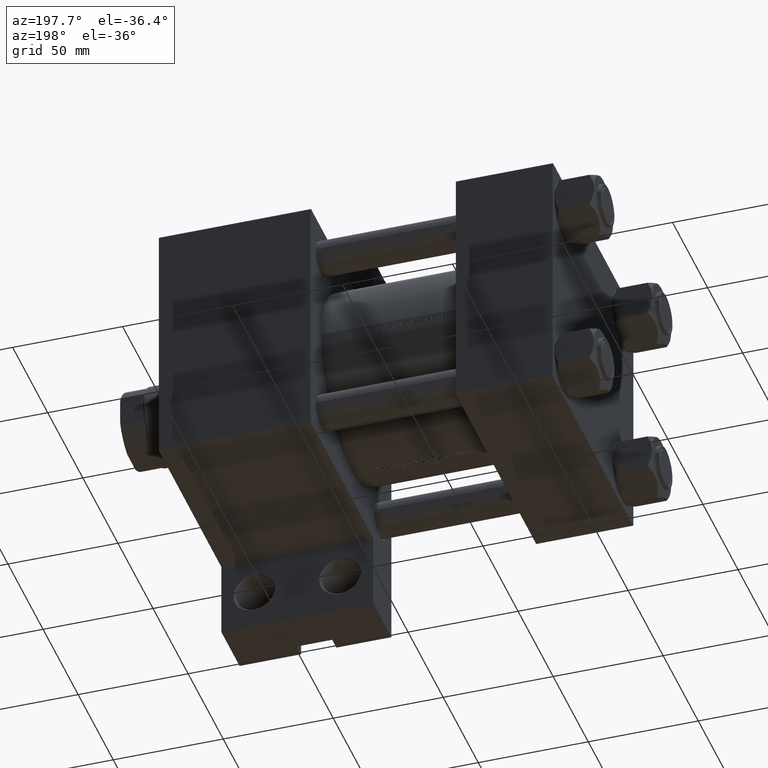
[diagram: clean part render]
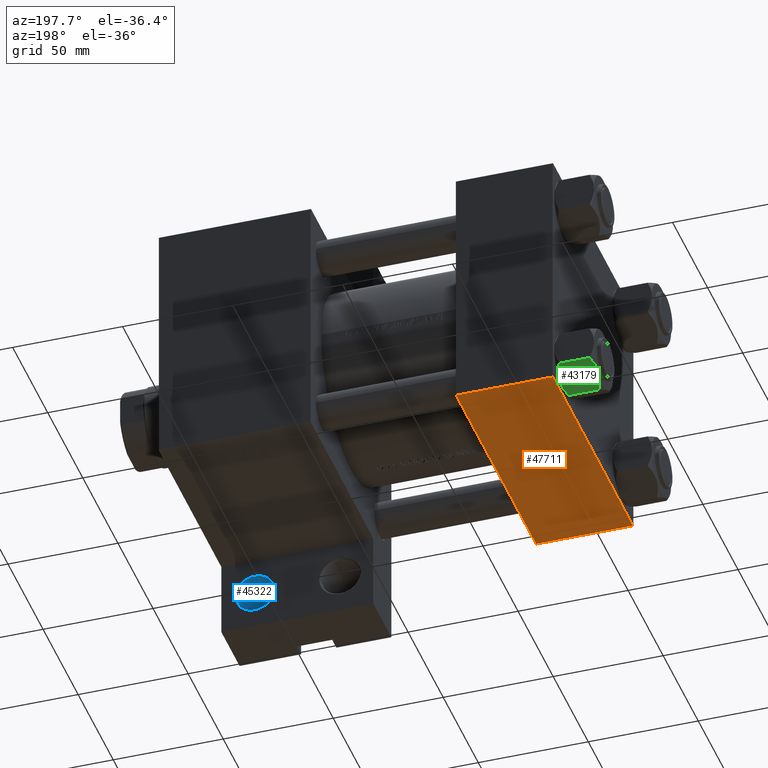
[diagram: same view with three faces highlighted in distinct colors, each labeled with its STEP entity id]
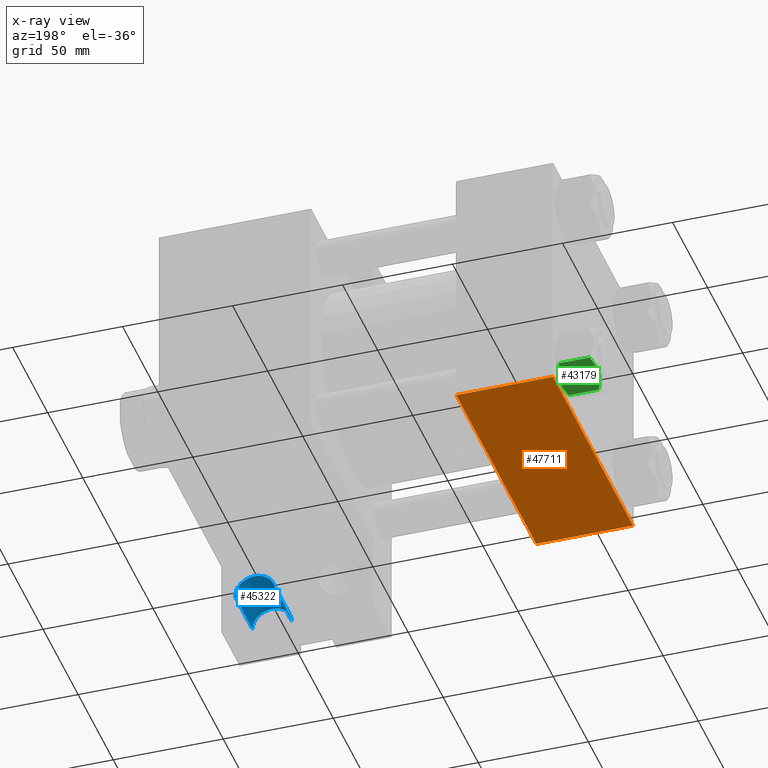
[diagram: x-ray of the same camera — body ghosted, the three highlighted faces saturated]
A machine part, auxiliary view with three faces highlighted in distinct colors.
The next image is the same camera in x-ray (body ghosted, the three faces saturated) — at least one of them is partly hidden behind the body in this view.
Their STEP definitions:

[orange] entity #47711 — the highlighted planar face has unit normal (0, 0, -1).
#3535 = CARTESIAN_POINT ( 'NONE',  ( 44.00000000000000000, 57.49999999999999289, -57.00000000000000711 ) ) ;
#4877 = AXIS2_PLACEMENT_3D ( 'NONE', #8517, #12417, #5109 ) ;
#5109 = DIRECTION ( 'NONE',  ( 0.000000000000000000, -0.000000000000000000, 1.000000000000000000 ) ) ;
#6801 = LINE ( 'NONE', #22101, #33137 ) ;
#8517 = CARTESIAN_POINT ( 'NONE',  ( 44.00000000000000000, 57.49999999999999289, 57.50000000000000711 ) ) ;
#9634 = EDGE_CURVE ( 'NONE', #9775, #47880, #6801, .T. ) ;
#9775 = VERTEX_POINT ( 'NONE', #19394 ) ;
#10602 = LINE ( 'NONE', #3535, #14728 ) ;
#11414 = VERTEX_POINT ( 'NONE', #37736 ) ;
#12215 = EDGE_CURVE ( 'NONE', #47880, #11414, #10602, .T. ) ;
#12369 = DIRECTION ( 'NONE',  ( 0.000000000000000000, 0.000000000000000000, -1.000000000000000000 ) ) ;
#12417 = DIRECTION ( 'NONE',  ( -0.000000000000000000, 1.000000000000000000, 0.000000000000000000 ) ) ;
#13967 = VERTEX_POINT ( 'NONE', #22078 ) ;
#13996 = VECTOR ( 'NONE', #31420, 1000.000000000000000 ) ;
#14728 = VECTOR ( 'NONE', #32746, 1000.000000000000000 ) ;
#16589 = CARTESIAN_POINT ( 'NONE',  ( 44.00000000000000000, 57.49999999999999289, 57.00000000000003553 ) ) ;
#17683 = ORIENTED_EDGE ( 'NONE', *, *, #9634, .T. ) ;
#18225 = DIRECTION ( 'NONE',  ( 0.000000000000000000, 0.000000000000000000, -1.000000000000000000 ) ) ;
#19394 = CARTESIAN_POINT ( 'NONE',  ( 44.00000000000000000, 57.49999999999999289, 57.00000000000003553 ) ) ;
#22078 = CARTESIAN_POINT ( 'NONE',  ( 0.000000000000000000, 57.49999999999999289, 57.00000000000003553 ) ) ;
#22101 = CARTESIAN_POINT ( 'NONE',  ( 44.00000000000000000, 57.49999999999999289, 57.50000000000000711 ) ) ;
#23880 = LINE ( 'NONE', #16589, #13996 ) ;
#26939 = CARTESIAN_POINT ( 'NONE',  ( 0.000000000000000000, 57.49999999999999289, 57.50000000000000711 ) ) ;
#29004 = ORIENTED_EDGE ( 'NONE', *, *, #39378, .F. ) ;
#29418 = ORIENTED_EDGE ( 'NONE', *, *, #38184, .T. ) ;
#31420 = DIRECTION ( 'NONE',  ( 1.000000000000000000, 0.000000000000000000, 0.000000000000000000 ) ) ;
#32746 = DIRECTION ( 'NONE',  ( -1.000000000000000000, 0.000000000000000000, 0.000000000000000000 ) ) ;
#33137 = VECTOR ( 'NONE', #18225, 1000.000000000000000 ) ;
#37736 = CARTESIAN_POINT ( 'NONE',  ( 0.000000000000000000, 57.49999999999999289, -57.00000000000000711 ) ) ;
#38184 = EDGE_CURVE ( 'NONE', #13967, #9775, #23880, .T. ) ;
#39378 = EDGE_CURVE ( 'NONE', #13967, #11414, #44746, .T. ) ;
#40129 = CARTESIAN_POINT ( 'NONE',  ( 44.00000000000000000, 57.49999999999999289, -57.00000000000000711 ) ) ;
#41841 = PLANE ( 'NONE',  #4877 ) ;
#42770 = VECTOR ( 'NONE', #12369, 1000.000000000000000 ) ;
#43377 = EDGE_LOOP ( 'NONE', ( #17683, #46642, #29004, #29418 ) ) ;
#44746 = LINE ( 'NONE', #26939, #42770 ) ;
#45019 = FACE_OUTER_BOUND ( 'NONE', #43377, .T. ) ;
#46642 = ORIENTED_EDGE ( 'NONE', *, *, #12215, .T. ) ;
#47711 = ADVANCED_FACE ( 'NONE', ( #45019 ), #41841, .T. ) ;
#47880 = VERTEX_POINT ( 'NONE', #40129 ) ;

[blue] entity #45322 — the highlighted cylindrical surface (edge-blend (fillet) strip) has radius 8.9995 mm, axis along (0, 1, 0).
#2006 = CARTESIAN_POINT ( 'NONE',  ( 155.0004999999999882, 74.50000000000000000, -82.95442990915330483 ) ) ;
#3670 = DIRECTION ( 'NONE',  ( 0.000000000000000000, 0.000000000000000000, 1.000000000000000000 ) ) ;
#3916 = CIRCLE ( 'NONE', #27191, 8.999499999999994060 ) ;
#8385 = DIRECTION ( 'NONE',  ( -0.000000000000000000, -0.000000000000000000, -1.000000000000000000 ) ) ;
#8392 = VECTOR ( 'NONE', #16850, 1000.000000000000000 ) ;
#9177 = EDGE_CURVE ( 'NONE', #39528, #23928, #17523, .T. ) ;
#9187 = CARTESIAN_POINT ( 'NONE',  ( 155.0004999999999882, 74.50000000000000000, -32.00000000000002132 ) ) ;
#10504 = CARTESIAN_POINT ( 'NONE',  ( 163.9999999999999716, 74.50000000000000000, -32.00000000000002132 ) ) ;
#10884 = CARTESIAN_POINT ( 'NONE',  ( 172.9994999999999834, 74.50000000000000000, -82.95442990915330483 ) ) ;
#11399 = VECTOR ( 'NONE', #43726, 1000.000000000000000 ) ;
#13217 = LINE ( 'NONE', #2006, #8392 ) ;
#14290 = CARTESIAN_POINT ( 'NONE',  ( 172.9994999999999834, 74.50000000000000000, -32.00000000000002132 ) ) ;
#15000 = AXIS2_PLACEMENT_3D ( 'NONE', #40746, #22249, #29791 ) ;
#15693 = DIRECTION ( 'NONE',  ( -1.000000000000000000, 0.000000000000000000, 0.000000000000000000 ) ) ;
#16850 = DIRECTION ( 'NONE',  ( -0.000000000000000000, -0.000000000000000000, 1.000000000000000000 ) ) ;
#17523 = CIRCLE ( 'NONE', #46243, 8.999499999999994060 ) ;
#19077 = VERTEX_POINT ( 'NONE', #26708 ) ;
#22249 = DIRECTION ( 'NONE',  ( -0.000000000000000000, -0.000000000000000000, 1.000000000000000000 ) ) ;
#23928 = VERTEX_POINT ( 'NONE', #14290 ) ;
#24168 = ORIENTED_EDGE ( 'NONE', *, *, #9177, .T. ) ;
#24435 = ORIENTED_EDGE ( 'NONE', *, *, #26852, .F. ) ;
#26708 = CARTESIAN_POINT ( 'NONE',  ( 172.9994999999999834, 74.50000000000000000, -56.99999999999996447 ) ) ;
#26852 = EDGE_CURVE ( 'NONE', #19077, #23928, #28873, .T. ) ;
#27191 = AXIS2_PLACEMENT_3D ( 'NONE', #34413, #8385, #15693 ) ;
#28873 = LINE ( 'NONE', #10884, #11399 ) ;
#29791 = DIRECTION ( 'NONE',  ( 1.000000000000000000, 0.000000000000000000, 0.000000000000000000 ) ) ;
#30749 = FACE_OUTER_BOUND ( 'NONE', #46014, .T. ) ;
#32388 = EDGE_CURVE ( 'NONE', #45571, #39528, #13217, .T. ) ;
#33923 = ORIENTED_EDGE ( 'NONE', *, *, #37822, .T. ) ;
#34413 = CARTESIAN_POINT ( 'NONE',  ( 163.9999999999999716, 74.50000000000000000, -56.99999999999996447 ) ) ;
#36756 = DIRECTION ( 'NONE',  ( 1.000000000000000000, 0.000000000000000000, 0.000000000000000000 ) ) ;
#37822 = EDGE_CURVE ( 'NONE', #19077, #45571, #3916, .T. ) ;
#39528 = VERTEX_POINT ( 'NONE', #9187 ) ;
#40746 = CARTESIAN_POINT ( 'NONE',  ( 163.9999999999999716, 74.50000000000000000, -82.95442990915330483 ) ) ;
#40927 = CARTESIAN_POINT ( 'NONE',  ( 155.0004999999999882, 74.50000000000000000, -56.99999999999996447 ) ) ;
#41221 = CYLINDRICAL_SURFACE ( 'NONE', #15000, 8.999499999999994060 ) ;
#43726 = DIRECTION ( 'NONE',  ( -0.000000000000000000, -0.000000000000000000, 1.000000000000000000 ) ) ;
#45322 = ADVANCED_FACE ( 'NONE', ( #30749 ), #41221, .F. ) ;
#45571 = VERTEX_POINT ( 'NONE', #40927 ) ;
#45673 = ORIENTED_EDGE ( 'NONE', *, *, #32388, .T. ) ;
#46014 = EDGE_LOOP ( 'NONE', ( #33923, #45673, #24168, #24435 ) ) ;
#46243 = AXIS2_PLACEMENT_3D ( 'NONE', #10504, #3670, #36756 ) ;

[green] entity #43179 — the highlighted planar face has unit normal (0, -0.5, 0.866).
#134 = VECTOR ( 'NONE', #44411, 1000.000000000000000 ) ;
#929 = CARTESIAN_POINT ( 'NONE',  ( -7.903528262322672582, 13.36532110482643354, -2.000000000000000000 ) ) ;
#1639 = CARTESIAN_POINT ( 'NONE',  ( -14.31545111198821374, 2.259544954993889299, -17.08577173959730544 ) ) ;
#3705 = EDGE_CURVE ( 'NONE', #39240, #39862, #43528, .T. ) ;
#4265 = CARTESIAN_POINT ( 'NONE',  ( -15.61999999999999567, 8.023367828467702033E-15, -18.00000000000000000 ) ) ;
#4297 = ORIENTED_EDGE ( 'NONE', *, *, #38516, .F. ) ;
#4758 = EDGE_CURVE ( 'NONE', #39862, #42720, #44307, .T. ) ;
#5481 = CARTESIAN_POINT ( 'NONE',  ( -7.809999999999996945, 13.52731680711293727, -1.999999999999998224 ) ) ;
#6743 = CARTESIAN_POINT ( 'NONE',  ( -15.61999999999999567, 8.023367828467702033E-15, -18.00000000000000000 ) ) ;
#9025 = B_SPLINE_CURVE_WITH_KNOTS ( 'NONE', 3,
 ( #20113, #34955, #1639, #20600, #24010, #31791, #16717, #31547 ),
 .UNSPECIFIED., .F., .F.,
 ( 4, 2, 2, 4 ),
 ( 4.472842641907744530E-07, 0.003945636373369311792, 0.005918230917921873946, 0.007890825462474436100 ),
 .UNSPECIFIED. ) ;
#9078 = ORIENTED_EDGE ( 'NONE', *, *, #30951, .F. ) ;
#9243 = CARTESIAN_POINT ( 'NONE',  ( -15.52647173767732802, 0.1619957022864961793, -2.000000000000000000 ) ) ;
#9819 = CARTESIAN_POINT ( 'NONE',  ( -15.61999999999999567, 8.023367828467702033E-15, -1.999999999999998224 ) ) ;
#10526 = CARTESIAN_POINT ( 'NONE',  ( -15.52647173767732802, 0.1619957022864961793, -16.00000000000000000 ) ) ;
#10570 = VECTOR ( 'NONE', #40067, 1000.000000000000000 ) ;
#10976 = CARTESIAN_POINT ( 'NONE',  ( -8.202637790192643052, 12.84724820552771263, -16.29368822085855584 ) ) ;
#11191 = EDGE_CURVE ( 'NONE', #45455, #32470, #19838, .T. ) ;
#11209 = CARTESIAN_POINT ( 'NONE',  ( -8.506059550806615022, 12.32170630002230638, -16.56553707812499354 ) ) ;
#12126 = CARTESIAN_POINT ( 'NONE',  ( -10.06459418565412278, 9.622245127110613083, -0.3836066851120565890 ) ) ;
#12151 = ORIENTED_EDGE ( 'NONE', *, *, #3705, .F. ) ;
#12310 = EDGE_CURVE ( 'NONE', #25248, #19397, #39256, .T. ) ;
#12665 = CARTESIAN_POINT ( 'NONE',  ( -15.22736220980736377, 0.6800686015852189792, -1.706311779141444385 ) ) ;
#13963 = CARTESIAN_POINT ( 'NONE',  ( -15.61999999999999567, 8.023367828467702033E-15, -16.00000000000000000 ) ) ;
#14526 = LINE ( 'NONE', #6743, #10570 ) ;
#14732 = LINE ( 'NONE', #21535, #134 ) ;
#14865 = CARTESIAN_POINT ( 'NONE',  ( -7.903528262322672582, 13.36532110482643354, -16.00000000000000000 ) ) ;
#15534 = CARTESIAN_POINT ( 'NONE',  ( -9.114548888011780647, 11.26777185211904353, -0.9142282604026925608 ) ) ;
#16232 = CARTESIAN_POINT ( 'NONE',  ( -9.124083218049239719, 11.25125790807804194, -17.05261278537718539 ) ) ;
#16544 = CARTESIAN_POINT ( 'NONE',  ( -15.52647173767732802, 0.1619957022864961793, -2.000000000000000000 ) ) ;
#16717 = CARTESIAN_POINT ( 'NONE',  ( -12.04818928091285457, 6.186557640478063114, -18.00000000000000711 ) ) ;
#17026 = LINE ( 'NONE', #46464, #18677 ) ;
#18493 = ORIENTED_EDGE ( 'NONE', *, *, #39428, .F. ) ;
#18677 = VECTOR ( 'NONE', #31609, 999.9999999999998863 ) ;
#19173 = CARTESIAN_POINT ( 'NONE',  ( -8.502393313253749696, 12.32805640973648309, -1.411989271640067933 ) ) ;
#19397 = VERTEX_POINT ( 'NONE', #33266 ) ;
#19488 = ORIENTED_EDGE ( 'NONE', *, *, #12310, .F. ) ;
#19558 = VERTEX_POINT ( 'NONE', #5481 ) ;
#19653 = CARTESIAN_POINT ( 'NONE',  ( -11.04378428799594758, 7.926238119586002995, -0.05089381635301037932 ) ) ;
#19838 = LINE ( 'NONE', #34914, #27096 ) ;
#19942 = CARTESIAN_POINT ( 'NONE',  ( -11.71500000000000341, 6.763658403556467746, 0.000000000000000000 ) ) ;
#20113 = CARTESIAN_POINT ( 'NONE',  ( -15.52647173767732802, 0.1619957022864961793, -16.00000000000000000 ) ) ;
#20187 = EDGE_LOOP ( 'NONE', ( #34443, #46160, #19488, #21807, #18493, #4297, #47877, #29992, #12151, #9078 ) ) ;
#20398 = AXIS2_PLACEMENT_3D ( 'NONE', #4265, #41479, #44897 ) ;
#20600 = CARTESIAN_POINT ( 'NONE',  ( -13.36540581434587516, 3.905071680002318857, -17.61639331488794369 ) ) ;
#21535 = CARTESIAN_POINT ( 'NONE',  ( -7.809999999999996945, 13.52731680711293727, -18.00000000000000000 ) ) ;
#21807 = ORIENTED_EDGE ( 'NONE', *, *, #38578, .F. ) ;
#22147 = CARTESIAN_POINT ( 'NONE',  ( -9.439480280627259745, 10.70497417113493022, -17.26828031537189290 ) ) ;
#22149 = CARTESIAN_POINT ( 'NONE',  ( -15.61999999999999567, 8.023367828467702033E-15, -16.00000000000000000 ) ) ;
#22266 = FACE_OUTER_BOUND ( 'NONE', #20187, .T. ) ;
#23307 = CARTESIAN_POINT ( 'NONE',  ( -10.38662926516871998, 9.064464007571849891, -0.2430846701012936983 ) ) ;
#23783 = CARTESIAN_POINT ( 'NONE',  ( -11.38181071908714515, 7.340759166634869715, 4.331726492258492723E-15 ) ) ;
#24010 = CARTESIAN_POINT ( 'NONE',  ( -13.04337073483128329, 4.462852799541079385, -17.75691532989870325 ) ) ;
#24163 = DIRECTION ( 'NONE',  ( -0.4999999999999999445, -0.8660254037844387076, 0.000000000000000000 ) ) ;
#24502 = CARTESIAN_POINT ( 'NONE',  ( -11.71500000000000341, 6.763658403556467746, 0.000000000000000000 ) ) ;
#24769 = B_SPLINE_CURVE_WITH_KNOTS ( 'NONE', 3,
 ( #19942, #42324, #43052, #31141, #46700, #45989, #12665, #9243 ),
 .UNSPECIFIED., .F., .F.,
 ( 4, 2, 2, 4 ),
 ( 0.007890825462474429161, 0.01181022244528554845, 0.01376992093669110635, 0.01572961942809666600 ),
 .UNSPECIFIED. ) ;
#24931 = EDGE_CURVE ( 'NONE', #45455, #19397, #14526, .T. ) ;
#25248 = VERTEX_POINT ( 'NONE', #16544 ) ;
#25992 = CARTESIAN_POINT ( 'NONE',  ( -11.71500000000000341, 6.763658403556467746, -18.00000000000000000 ) ) ;
#26982 = B_SPLINE_CURVE_WITH_KNOTS ( 'NONE', 3,
 ( #929, #19173, #15534, #12126, #23307, #19653, #23783, #24502 ),
 .UNSPECIFIED., .F., .F.,
 ( 4, 2, 2, 4 ),
 ( 4.472842641835287214E-07, 0.003945636373369305720, 0.005918230917921867007, 0.007890825462474429161 ),
 .UNSPECIFIED. ) ;
#27096 = VECTOR ( 'NONE', #36310, 999.9999999999998863 ) ;
#29474 = VECTOR ( 'NONE', #24163, 999.9999999999998863 ) ;
#29690 = CARTESIAN_POINT ( 'NONE',  ( -11.05297796109637787, 7.910314210667880985, -18.00000000000000355 ) ) ;
#29992 = ORIENTED_EDGE ( 'NONE', *, *, #4758, .F. ) ;
#30951 = EDGE_CURVE ( 'NONE', #32470, #39240, #9025, .T. ) ;
#31141 = CARTESIAN_POINT ( 'NONE',  ( -13.99051971937273997, 2.822342635978005276, -0.7317196846281108780 ) ) ;
#31547 = CARTESIAN_POINT ( 'NONE',  ( -11.71500000000000341, 6.763658403556467746, -18.00000000000000000 ) ) ;
#31609 = DIRECTION ( 'NONE',  ( -0.4999999999999999445, -0.8660254037844387076, 0.000000000000000000 ) ) ;
#31791 = CARTESIAN_POINT ( 'NONE',  ( -12.38621571200405569, 5.601078687526927169, -17.94910618364698252 ) ) ;
#32470 = VERTEX_POINT ( 'NONE', #10526 ) ;
#33266 = CARTESIAN_POINT ( 'NONE',  ( -15.61999999999999567, 8.023367828467702033E-15, -1.999999999999998224 ) ) ;
#33350 = CARTESIAN_POINT ( 'NONE',  ( -11.71500000000000341, 6.763658403556467746, -18.00000000000000000 ) ) ;
#33354 = CARTESIAN_POINT ( 'NONE',  ( -7.809999999999996945, 13.52731680711293727, -16.00000000000000000 ) ) ;
#34443 = ORIENTED_EDGE ( 'NONE', *, *, #11191, .F. ) ;
#34914 = CARTESIAN_POINT ( 'NONE',  ( -15.61999999999999567, 8.023367828467702033E-15, -16.00000000000000000 ) ) ;
#34955 = CARTESIAN_POINT ( 'NONE',  ( -14.92760668674625713, 1.199260397376444409, -16.58801072835993295 ) ) ;
#36310 = DIRECTION ( 'NONE',  ( 0.4999999999999999445, 0.8660254037844387076, 0.000000000000000000 ) ) ;
#36982 = CARTESIAN_POINT ( 'NONE',  ( -10.40215497533436917, 9.037572688741351001, -17.80281335400754017 ) ) ;
#36983 = DIRECTION ( 'NONE',  ( 0.4999999999999999445, 0.8660254037844387076, 0.000000000000000000 ) ) ;
#38516 = EDGE_CURVE ( 'NONE', #19558, #46008, #17026, .T. ) ;
#38578 = EDGE_CURVE ( 'NONE', #45457, #25248, #24769, .T. ) ;
#39240 = VERTEX_POINT ( 'NONE', #25992 ) ;
#39256 = LINE ( 'NONE', #9819, #29474 ) ;
#39428 = EDGE_CURVE ( 'NONE', #46008, #45457, #26982, .T. ) ;
#39862 = VERTEX_POINT ( 'NONE', #42451 ) ;
#40067 = DIRECTION ( 'NONE',  ( -0.000000000000000000, -0.000000000000000000, 1.000000000000000000 ) ) ;
#41259 = CARTESIAN_POINT ( 'NONE',  ( -7.903528262322672582, 13.36532110482643354, -2.000000000000000000 ) ) ;
#41320 = EDGE_CURVE ( 'NONE', #42720, #19558, #14732, .T. ) ;
#41479 = DIRECTION ( 'NONE',  ( 0.8660254037844387076, -0.4999999999999999445, 0.000000000000000000 ) ) ;
#42324 = CARTESIAN_POINT ( 'NONE',  ( -12.37702203890362185, 5.617002596445053619, 4.300668617525835570E-15 ) ) ;
#42451 = CARTESIAN_POINT ( 'NONE',  ( -7.903528262322672582, 13.36532110482643354, -16.00000000000000000 ) ) ;
#42720 = VERTEX_POINT ( 'NONE', #33354 ) ;
#43052 = CARTESIAN_POINT ( 'NONE',  ( -13.02784502466562522, 4.489744118371585380, -0.1971866459924509485 ) ) ;
#43179 = ADVANCED_FACE ( 'NONE', ( #22266 ), #45129, .F. ) ;
#43528 = B_SPLINE_CURVE_WITH_KNOTS ( 'NONE', 3,
 ( #33350, #29690, #36982, #22147, #16232, #11209, #10976, #14865 ),
 .UNSPECIFIED., .F., .F.,
 ( 4, 2, 2, 4 ),
 ( 0.007890825462474436100, 0.01181022244528555365, 0.01376992093669111156, 0.01572961942809666946 ),
 .UNSPECIFIED. ) ;
#43878 = CARTESIAN_POINT ( 'NONE',  ( -11.71500000000000341, 6.763658403556467746, 0.000000000000000000 ) ) ;
#44307 = LINE ( 'NONE', #22149, #47736 ) ;
#44411 = DIRECTION ( 'NONE',  ( -0.000000000000000000, -0.000000000000000000, 1.000000000000000000 ) ) ;
#44897 = DIRECTION ( 'NONE',  ( 0.4999999999999998890, 0.8660254037844385966, 0.000000000000000000 ) ) ;
#45129 = PLANE ( 'NONE',  #20398 ) ;
#45455 = VERTEX_POINT ( 'NONE', #13963 ) ;
#45457 = VERTEX_POINT ( 'NONE', #43878 ) ;
#45989 = CARTESIAN_POINT ( 'NONE',  ( -14.92394044919338825, 1.205610507090627781, -1.434462921875002683 ) ) ;
#46008 = VERTEX_POINT ( 'NONE', #41259 ) ;
#46160 = ORIENTED_EDGE ( 'NONE', *, *, #24931, .T. ) ;
#46464 = CARTESIAN_POINT ( 'NONE',  ( -15.61999999999999567, 8.023367828467702033E-15, -1.999999999999998224 ) ) ;
#46700 = CARTESIAN_POINT ( 'NONE',  ( -14.30591678195076177, 2.276058899034892224, -0.9473872146228117241 ) ) ;
#47736 = VECTOR ( 'NONE', #36983, 999.9999999999998863 ) ;
#47877 = ORIENTED_EDGE ( 'NONE', *, *, #41320, .F. ) ;